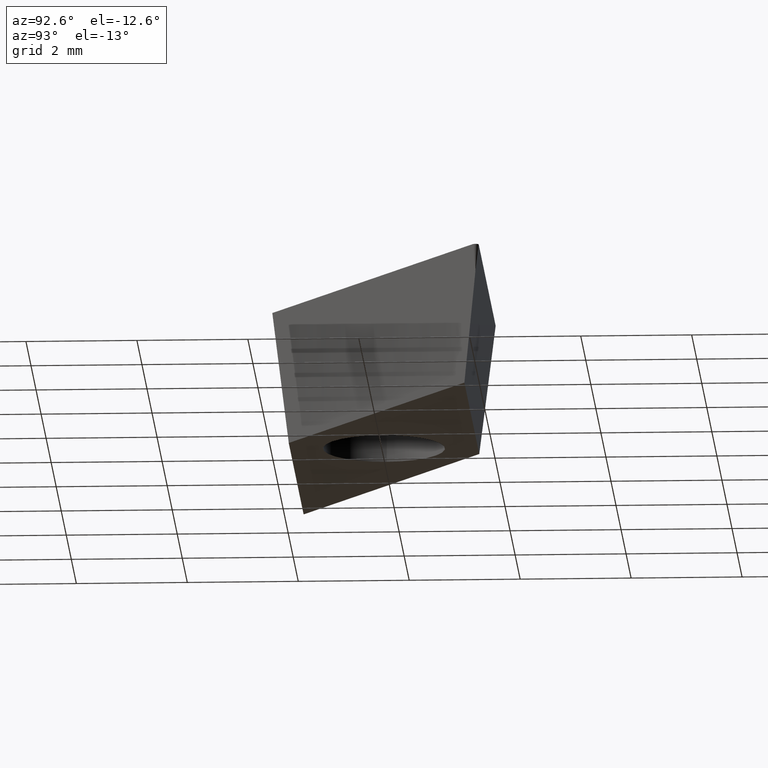
[diagram: clean part render]
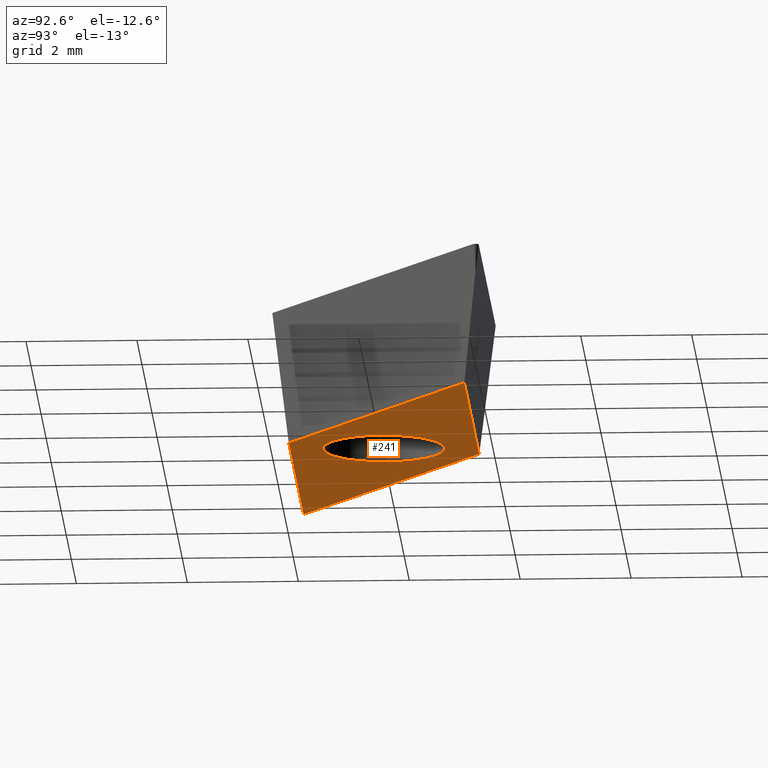
[diagram: same view with one face highlighted and labeled with its STEP entity id]
A machine part, auxiliary view. The second image highlights one B-rep face of the part: STEP entity #241.
In plain terms, the highlighted planar face has unit normal (0, 0, -1).
Its self-contained STEP definition (entity closure, byte-faithful):
#12 = DIRECTION ( 'NONE',  ( 1.000000000000000000, 0.0000000000000000000, 0.0000000000000000000 ) ) ;
#13 = DIRECTION ( 'NONE',  ( 0.0000000000000000000, 0.0000000000000000000, 1.000000000000000000 ) ) ;
#16 = CARTESIAN_POINT ( 'NONE',  ( 0.0000000000000000000, 0.0000000000000000000, -2.379999999999999900 ) ) ;
#18 = AXIS2_PLACEMENT_3D ( 'NONE', #234, #232, #231 ) ;
#35 = EDGE_CURVE ( 'NONE', #318, #332, #443, .T. ) ;
#53 = EDGE_CURVE ( 'NONE', #454, #298, #323, .T. ) ;
#71 = CARTESIAN_POINT ( 'NONE',  ( -5.368789239785836100, -1.692772745051088300, -2.380000000000000300 ) ) ;
#79 = CARTESIAN_POINT ( 'NONE',  ( -0.5337291963618879800, 1.692772745051086300, -2.379999999999999900 ) ) ;
#82 = CARTESIAN_POINT ( 'NONE',  ( 0.5337291963620123300, -1.692772745051087200, -2.379999999999999900 ) ) ;
#86 = CARTESIAN_POINT ( 'NONE',  ( -1.433776949020602900, -1.692772745051087200, -2.380000000000000300 ) ) ;
#93 = CIRCLE ( 'NONE', #18, 1.100000000000000100 ) ;
#99 = CARTESIAN_POINT ( 'NONE',  ( -5.368789239785836100, -1.692772745051088300, -2.380000000000000300 ) ) ;
#114 = CARTESIAN_POINT ( 'NONE',  ( -0.5337291963618879800, 1.692772745051086300, -2.379999999999999900 ) ) ;
#115 = CARTESIAN_POINT ( 'NONE',  ( 1.433776949021000800, 1.692772745051086300, -2.379999999999999400 ) ) ;
#118 = CARTESIAN_POINT ( 'NONE',  ( -3.401283094403221100, -1.692772745051088100, -2.380000000000000300 ) ) ;
#124 = DIRECTION ( 'NONE',  ( 0.0000000000000000000, 0.0000000000000000000, -1.000000000000000000 ) ) ;
#126 = FACE_OUTER_BOUND ( 'NONE', #353, .T. ) ;
#127 = CARTESIAN_POINT ( 'NONE',  ( 3.401283094403876100, 1.692772745051087700, -2.379999999999999400 ) ) ;
#141 = CARTESIAN_POINT ( 'NONE',  ( 1.100000000000000100, 0.0000000000000000000, -2.379999999999999900 ) ) ;
#161 = CARTESIAN_POINT ( 'NONE',  ( -1.100000000000000100, 1.347111479062088500E-016, -2.379999999999999900 ) ) ;
#162 = FACE_BOUND ( 'NONE', #363, .T. ) ;
#165 = CARTESIAN_POINT ( 'NONE',  ( -2.145415877502627700, 0.5642575816828707700, -2.379999999999999400 ) ) ;
#166 = AXIS2_PLACEMENT_3D ( 'NONE', #16, #13, #12 ) ;
#177 = CARTESIAN_POINT ( 'NONE',  ( -3.757102558644187500, -0.5642575816841700600, -2.379999999999999400 ) ) ;
#204 = B_SPLINE_CURVE_WITH_KNOTS ( 'NONE', 3,
 ( #99, #118, #86, #82 ),
 .UNSPECIFIED., .F., .F.,
 ( 4, 4 ),
 ( 8.673617379884035500E-019, 0.005902518436147849400 ),
 .UNSPECIFIED. ) ;
#217 = CARTESIAN_POINT ( 'NONE',  ( 5.368789239786762500, 1.692772745051088100, -2.379999999999999400 ) ) ;
#230 = CARTESIAN_POINT ( 'NONE',  ( 5.368789239786762500, 1.692772745051088100, -2.379999999999999400 ) ) ;
#231 = DIRECTION ( 'NONE',  ( 1.000000000000000000, 0.0000000000000000000, 0.0000000000000000000 ) ) ;
#232 = DIRECTION ( 'NONE',  ( 0.0000000000000000000, 0.0000000000000000000, 1.000000000000000000 ) ) ;
#234 = CARTESIAN_POINT ( 'NONE',  ( 0.0000000000000000000, 0.0000000000000000000, -2.379999999999999900 ) ) ;
#239 = CARTESIAN_POINT ( 'NONE',  ( 0.5337291963620123300, -1.692772745051087200, -2.379999999999999900 ) ) ;
#241 = ADVANCED_FACE ( 'NONE', ( #162, #126 ), #419, .T. ) ;
#292 = CIRCLE ( 'NONE', #166, 1.100000000000000100 ) ;
#298 = VERTEX_POINT ( 'NONE', #71 ) ;
#309 = EDGE_CURVE ( 'NONE', #387, #406, #93, .T. ) ;
#318 = VERTEX_POINT ( 'NONE', #239 ) ;
#320 = CARTESIAN_POINT ( 'NONE',  ( -0.5337291963618879800, 1.692772745051086300, -2.379999999999999900 ) ) ;
#323 = B_SPLINE_CURVE_WITH_KNOTS ( 'NONE', 3,
 ( #320, #165, #177, #348 ),
 .UNSPECIFIED., .F., .F.,
 ( 4, 4 ),
 ( 0.0000000000000000000, 0.005902518436147910100 ),
 .UNSPECIFIED. ) ;
#327 = CARTESIAN_POINT ( 'NONE',  ( 0.0000000000000000000, 0.0000000000000000000, -2.379999999999999900 ) ) ;
#332 = VERTEX_POINT ( 'NONE', #230 ) ;
#348 = CARTESIAN_POINT ( 'NONE',  ( -5.368789239785836100, -1.692772745051088300, -2.380000000000000300 ) ) ;
#353 = EDGE_LOOP ( 'NONE', ( #365, #366, #372, #380 ) ) ;
#361 = ORIENTED_EDGE ( 'NONE', *, *, #487, .T. ) ;
#362 = ORIENTED_EDGE ( 'NONE', *, *, #309, .T. ) ;
#363 = EDGE_LOOP ( 'NONE', ( #361, #362 ) ) ;
#365 = ORIENTED_EDGE ( 'NONE', *, *, #53, .F. ) ;
#366 = ORIENTED_EDGE ( 'NONE', *, *, #416, .F. ) ;
#372 = ORIENTED_EDGE ( 'NONE', *, *, #35, .F. ) ;
#380 = ORIENTED_EDGE ( 'NONE', *, *, #451, .F. ) ;
#387 = VERTEX_POINT ( 'NONE', #161 ) ;
#400 = AXIS2_PLACEMENT_3D ( 'NONE', #327, #124, #413 ) ;
#406 = VERTEX_POINT ( 'NONE', #141 ) ;
#413 = DIRECTION ( 'NONE',  ( -1.000000000000000000, 0.0000000000000000000, -0.0000000000000000000 ) ) ;
#416 = EDGE_CURVE ( 'NONE', #332, #454, #469, .T. ) ;
#419 = PLANE ( 'NONE',  #400 ) ;
#443 = B_SPLINE_CURVE_WITH_KNOTS ( 'NONE', 3,
 ( #459, #471, #486, #446 ),
 .UNSPECIFIED., .F., .F.,
 ( 4, 4 ),
 ( 0.0000000000000000000, 0.005902518436148567600 ),
 .UNSPECIFIED. ) ;
#446 = CARTESIAN_POINT ( 'NONE',  ( 5.368789239786762500, 1.692772745051088100, -2.379999999999999400 ) ) ;
#451 = EDGE_CURVE ( 'NONE', #298, #318, #204, .T. ) ;
#454 = VERTEX_POINT ( 'NONE', #79 ) ;
#459 = CARTESIAN_POINT ( 'NONE',  ( 0.5337291963620123300, -1.692772745051087200, -2.379999999999999900 ) ) ;
#469 = B_SPLINE_CURVE_WITH_KNOTS ( 'NONE', 3,
 ( #217, #127, #115, #114 ),
 .UNSPECIFIED., .F., .F.,
 ( 4, 4 ),
 ( 8.673617379884035500E-019, 0.005902518436148649100 ),
 .UNSPECIFIED. ) ;
#471 = CARTESIAN_POINT ( 'NONE',  ( 2.145415877504024800, -0.5642575816843080600, -2.380000000000000300 ) ) ;
#486 = CARTESIAN_POINT ( 'NONE',  ( 3.757102558645672600, 0.5642575816829925600, -2.380000000000000300 ) ) ;
#487 = EDGE_CURVE ( 'NONE', #406, #387, #292, .T. ) ;